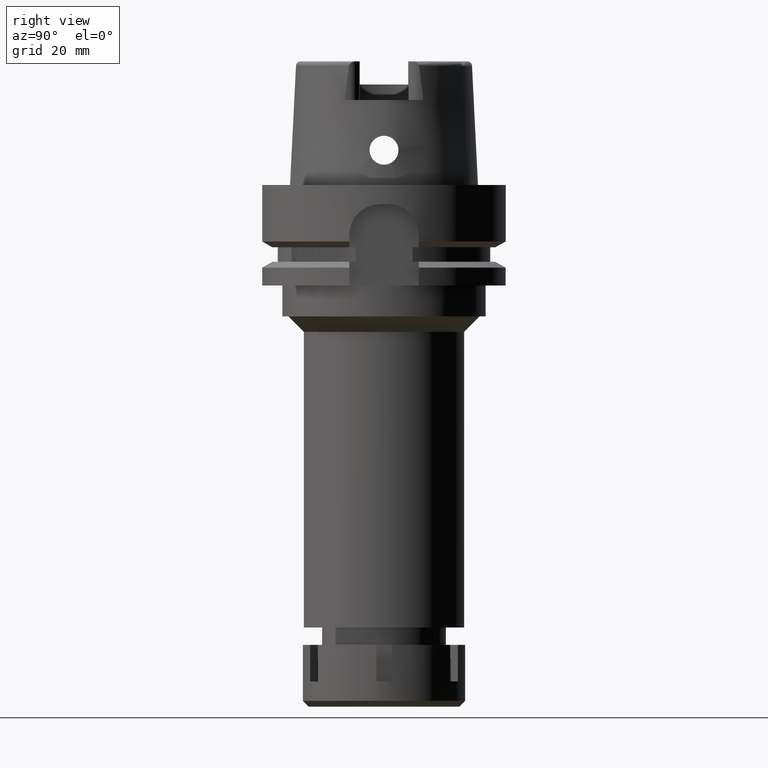
[diagram: clean part render]
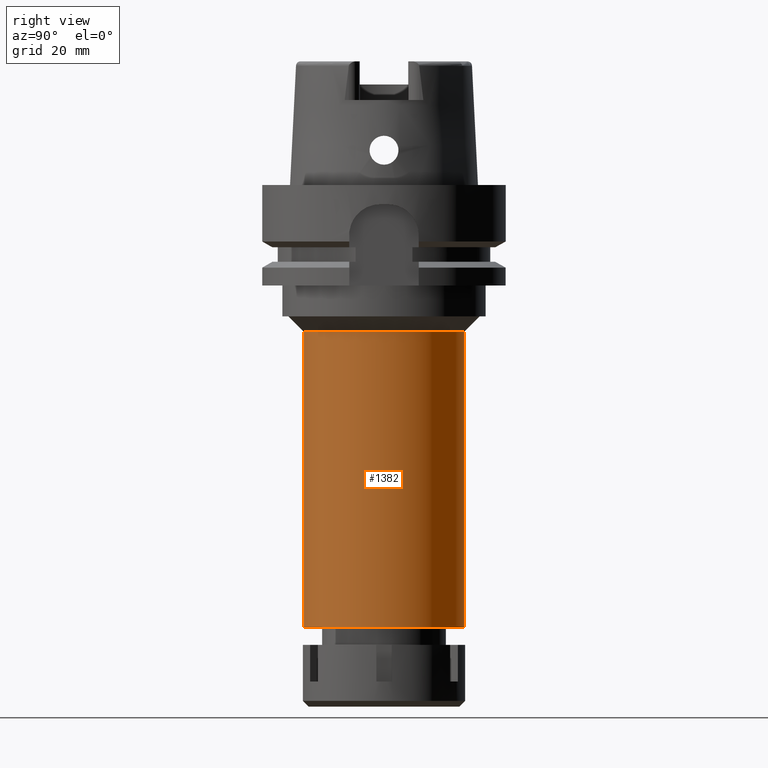
[diagram: same view with one face highlighted and labeled with its STEP entity id]
A machine part, right view. The second image highlights one B-rep face of the part: STEP entity #1382.
In plain terms, the highlighted cylindrical surface (partial cylindrical patch) has radius 20.75 mm, axis along (0, 0, 1).
Its self-contained STEP definition (entity closure, byte-faithful):
#116 = DIRECTION ( 'NONE',  ( 0.0000000000000000000, 0.0000000000000000000, -1.000000000000000000 ) ) ;
#131 = CARTESIAN_POINT ( 'NONE',  ( 0.0000000000000000000, 20.75000000000000000, -38.00000000000000000 ) ) ;
#344 = VERTEX_POINT ( 'NONE', #4589 ) ;
#398 = VECTOR ( 'NONE', #3643, 1000.000000000000000 ) ;
#434 = CARTESIAN_POINT ( 'NONE',  ( 0.0000000000000000000, -20.75000000000000000, -38.00000000000000000 ) ) ;
#614 = ORIENTED_EDGE ( 'NONE', *, *, #5371, .T. ) ;
#747 = DIRECTION ( 'NONE',  ( 0.0000000000000000000, 0.0000000000000000000, 1.000000000000000000 ) ) ;
#927 = CARTESIAN_POINT ( 'NONE',  ( 0.0000000000000000000, 20.75000000000000000, -38.00000000000000000 ) ) ;
#1010 = EDGE_LOOP ( 'NONE', ( #1208, #614, #1302, #3869 ) ) ;
#1026 = FACE_OUTER_BOUND ( 'NONE', #1010, .T. ) ;
#1169 = DIRECTION ( 'NONE',  ( 0.0000000000000000000, 1.000000000000000000, 0.0000000000000000000 ) ) ;
#1208 = ORIENTED_EDGE ( 'NONE', *, *, #2903, .T. ) ;
#1302 = ORIENTED_EDGE ( 'NONE', *, *, #5775, .T. ) ;
#1382 = ADVANCED_FACE ( 'NONE', ( #1026 ), #2349, .T. ) ;
#1408 = CARTESIAN_POINT ( 'NONE',  ( 0.0000000000000000000, -20.75000000000000000, -38.00000000000000000 ) ) ;
#2249 = DIRECTION ( 'NONE',  ( 0.0000000000000000000, -1.000000000000000000, 0.0000000000000000000 ) ) ;
#2266 = AXIS2_PLACEMENT_3D ( 'NONE', #4600, #747, #2249 ) ;
#2349 = CYLINDRICAL_SURFACE ( 'NONE', #5941, 20.75000000000000000 ) ;
#2453 = LINE ( 'NONE', #927, #5175 ) ;
#2514 = AXIS2_PLACEMENT_3D ( 'NONE', #5008, #3517, #1169 ) ;
#2740 = VERTEX_POINT ( 'NONE', #131 ) ;
#2903 = EDGE_CURVE ( 'NONE', #2740, #4443, #4283, .T. ) ;
#3517 = DIRECTION ( 'NONE',  ( 0.0000000000000000000, 0.0000000000000000000, -1.000000000000000000 ) ) ;
#3643 = DIRECTION ( 'NONE',  ( 0.0000000000000000000, 0.0000000000000000000, -1.000000000000000000 ) ) ;
#3699 = LINE ( 'NONE', #1408, #398 ) ;
#3755 = DIRECTION ( 'NONE',  ( 0.0000000000000000000, 0.0000000000000000000, 1.000000000000000000 ) ) ;
#3826 = EDGE_CURVE ( 'NONE', #2740, #4242, #2453, .T. ) ;
#3869 = ORIENTED_EDGE ( 'NONE', *, *, #3826, .F. ) ;
#4042 = CIRCLE ( 'NONE', #2266, 20.75000000000000000 ) ;
#4242 = VERTEX_POINT ( 'NONE', #5037 ) ;
#4283 = CIRCLE ( 'NONE', #2514, 20.75000000000000000 ) ;
#4290 = CARTESIAN_POINT ( 'NONE',  ( 0.0000000000000000000, 0.0000000000000000000, -134.9499999999999886 ) ) ;
#4443 = VERTEX_POINT ( 'NONE', #434 ) ;
#4589 = CARTESIAN_POINT ( 'NONE',  ( 0.0000000000000000000, -20.75000000000000000, -114.5000000000000000 ) ) ;
#4600 = CARTESIAN_POINT ( 'NONE',  ( 0.0000000000000000000, 0.0000000000000000000, -114.5000000000000000 ) ) ;
#5008 = CARTESIAN_POINT ( 'NONE',  ( 0.0000000000000000000, 0.0000000000000000000, -38.00000000000000000 ) ) ;
#5037 = CARTESIAN_POINT ( 'NONE',  ( 0.0000000000000000000, 20.75000000000000000, -114.5000000000000000 ) ) ;
#5175 = VECTOR ( 'NONE', #116, 1000.000000000000000 ) ;
#5371 = EDGE_CURVE ( 'NONE', #4443, #344, #3699, .T. ) ;
#5635 = DIRECTION ( 'NONE',  ( 0.0000000000000000000, 1.000000000000000000, 0.0000000000000000000 ) ) ;
#5775 = EDGE_CURVE ( 'NONE', #344, #4242, #4042, .T. ) ;
#5941 = AXIS2_PLACEMENT_3D ( 'NONE', #4290, #3755, #5635 ) ;